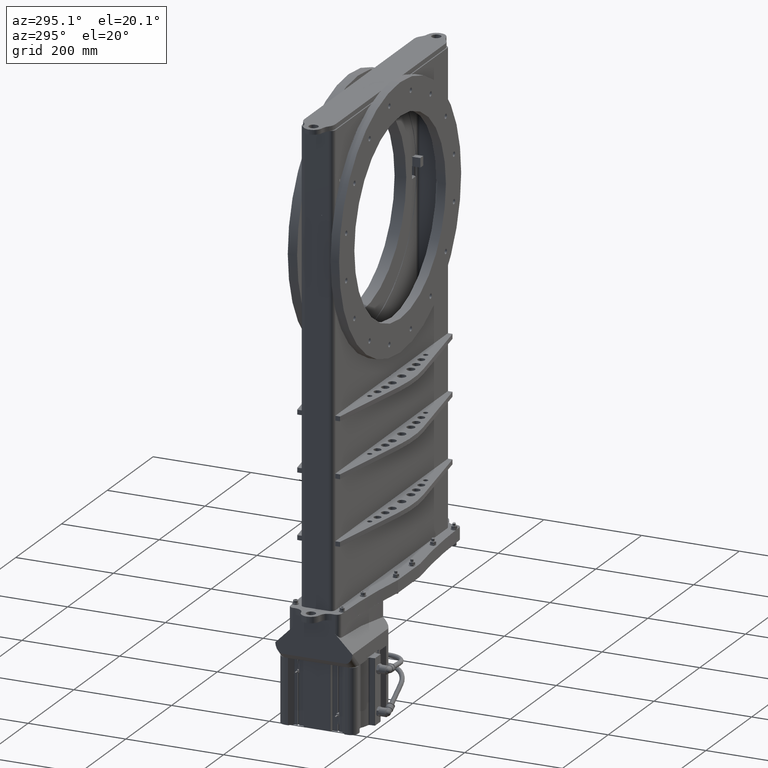
[diagram: clean part render]
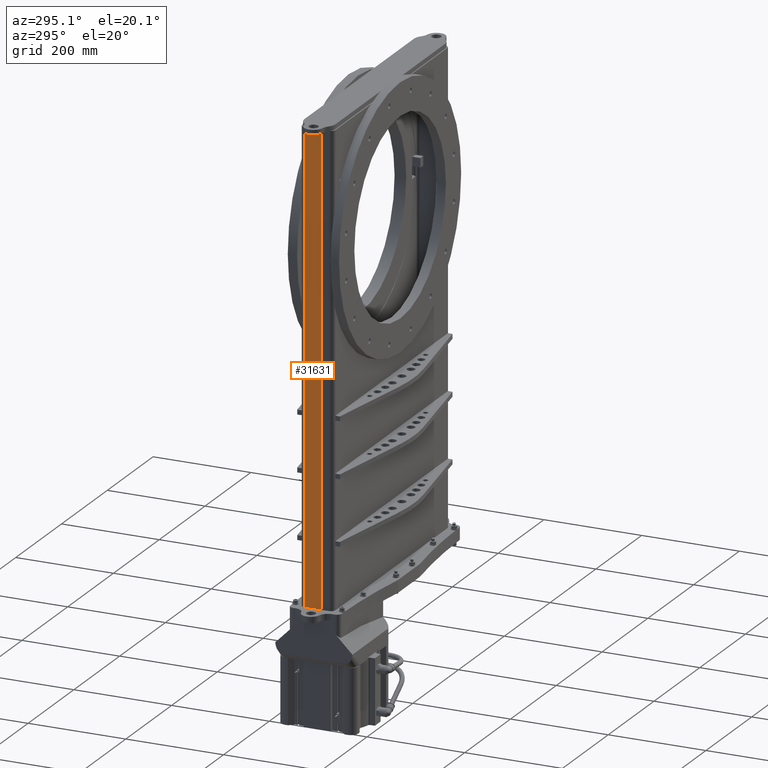
[diagram: same view with one face highlighted and labeled with its STEP entity id]
A machine part, auxiliary view. The second image highlights one B-rep face of the part: STEP entity #31631.
In plain terms, the highlighted planar face has unit normal (1, 0, 0).
Its self-contained STEP definition (entity closure, byte-faithful):
#1012 = LINE ( 'NONE', #17448, #16954 ) ;
#5575 = ORIENTED_EDGE ( 'NONE', *, *, #9215, .F. ) ;
#5852 = EDGE_LOOP ( 'NONE', ( #12532, #44575, #5575, #16717 ) ) ;
#8944 = VERTEX_POINT ( 'NONE', #39382 ) ;
#9215 = EDGE_CURVE ( 'NONE', #23759, #53665, #1012, .T. ) ;
#10281 = DIRECTION ( 'NONE',  ( -0.0000000000000000000, -1.000000000000000000, -0.0000000000000000000 ) ) ;
#11773 = CARTESIAN_POINT ( 'NONE',  ( -10.00000000000000200, -76.06101309069576600, 4.964327947744453500 ) ) ;
#12532 = ORIENTED_EDGE ( 'NONE', *, *, #28416, .T. ) ;
#16717 = ORIENTED_EDGE ( 'NONE', *, *, #19866, .T. ) ;
#16954 = VECTOR ( 'NONE', #46979, 39.37007874015748100 ) ;
#17448 = CARTESIAN_POINT ( 'NONE',  ( -10.00000000000000200, -76.06101309069576600, 42.27682794774445800 ) ) ;
#17526 = LINE ( 'NONE', #49159, #28230 ) ;
#19816 = CARTESIAN_POINT ( 'NONE',  ( -10.00000000000000200, -76.06101309069576600, 4.964327947744453500 ) ) ;
#19866 = EDGE_CURVE ( 'NONE', #23759, #8944, #17526, .T. ) ;
#21003 = LINE ( 'NONE', #42135, #59795 ) ;
#22022 = DIRECTION ( 'NONE',  ( 1.000000000000000000, 0.0000000000000000000, 0.0000000000000000000 ) ) ;
#23759 = VERTEX_POINT ( 'NONE', #52194 ) ;
#26480 = CARTESIAN_POINT ( 'NONE',  ( -10.00000000000000200, -76.06101309069576600, 42.27682794774445800 ) ) ;
#28230 = VECTOR ( 'NONE', #49761, 39.37007874015748100 ) ;
#28338 = DIRECTION ( 'NONE',  ( -0.0000000000000000000, -0.0000000000000000000, -1.000000000000000000 ) ) ;
#28416 = EDGE_CURVE ( 'NONE', #8944, #56188, #44832, .T. ) ;
#31631 = ADVANCED_FACE ( 'NONE', ( #51389 ), #41339, .F. ) ;
#32061 = EDGE_CURVE ( 'NONE', #53665, #56188, #21003, .T. ) ;
#34321 = AXIS2_PLACEMENT_3D ( 'NONE', #26480, #22022, #60500 ) ;
#34779 = CARTESIAN_POINT ( 'NONE',  ( -10.00000000000000200, -76.06101309069576600, 42.27682794774445800 ) ) ;
#39382 = CARTESIAN_POINT ( 'NONE',  ( -10.00000000000000200, -74.72601309069577300, 4.964327947744453500 ) ) ;
#41339 = PLANE ( 'NONE',  #34321 ) ;
#42135 = CARTESIAN_POINT ( 'NONE',  ( -10.00000000000000200, -76.06101309069576600, 42.27682794774445800 ) ) ;
#44575 = ORIENTED_EDGE ( 'NONE', *, *, #32061, .F. ) ;
#44832 = LINE ( 'NONE', #19816, #48655 ) ;
#46979 = DIRECTION ( 'NONE',  ( -0.0000000000000000000, -1.000000000000000000, -0.0000000000000000000 ) ) ;
#48655 = VECTOR ( 'NONE', #10281, 39.37007874015748100 ) ;
#49159 = CARTESIAN_POINT ( 'NONE',  ( -10.00000000000000200, -74.72601309069577300, 42.27682794774445800 ) ) ;
#49761 = DIRECTION ( 'NONE',  ( -0.0000000000000000000, -0.0000000000000000000, -1.000000000000000000 ) ) ;
#51389 = FACE_OUTER_BOUND ( 'NONE', #5852, .T. ) ;
#52194 = CARTESIAN_POINT ( 'NONE',  ( -10.00000000000000200, -74.72601309069577300, 42.27682794774445800 ) ) ;
#53665 = VERTEX_POINT ( 'NONE', #34779 ) ;
#56188 = VERTEX_POINT ( 'NONE', #11773 ) ;
#59795 = VECTOR ( 'NONE', #28338, 39.37007874015748100 ) ;
#60500 = DIRECTION ( 'NONE',  ( 0.0000000000000000000, 0.0000000000000000000, -1.000000000000000000 ) ) ;